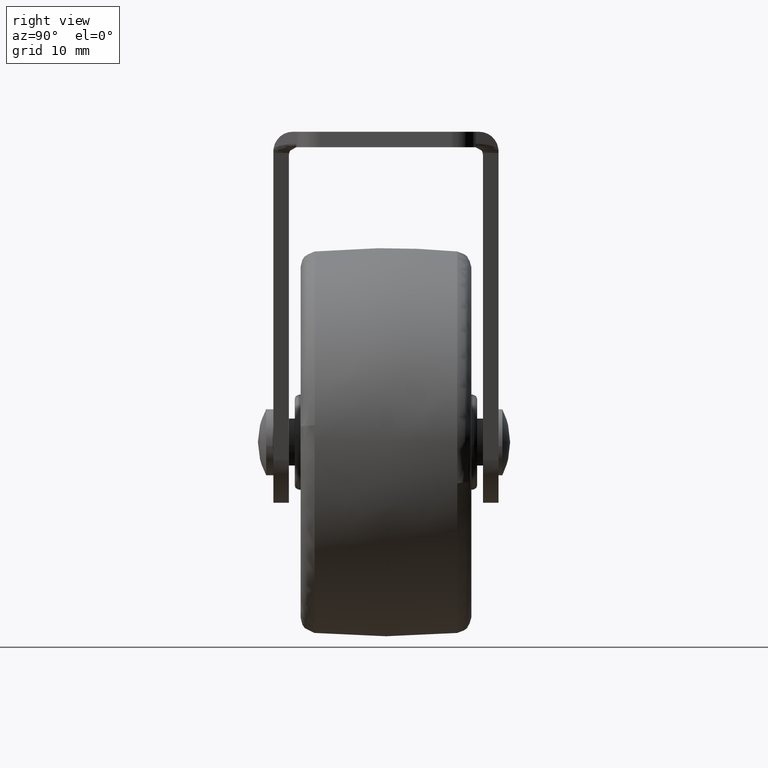
[diagram: clean part render]
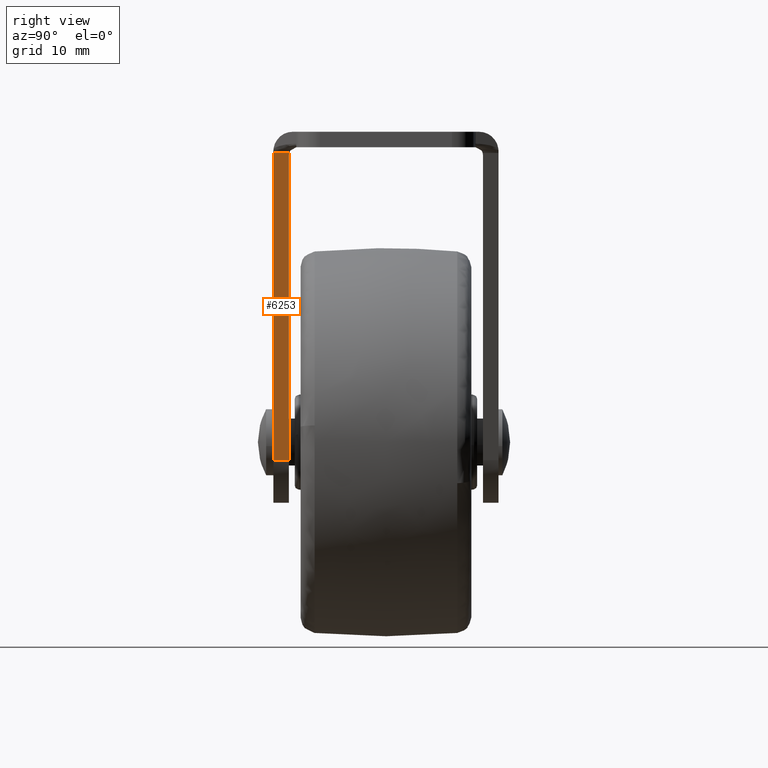
[diagram: same view with one face highlighted and labeled with its STEP entity id]
A machine part, right view. The second image highlights one B-rep face of the part: STEP entity #6253.
In plain terms, the highlighted face is a freeform B-spline surface patch.
Its self-contained STEP definition (entity closure, byte-faithful):
#5768=CARTESIAN_POINT('',(18.202673882767751,-12.463622182917620,-2.732731804007515));
#5769=VERTEX_POINT('',#5768);
#5794=CARTESIAN_POINT('',(18.202673882767751,-14.500000000000000,-2.732731804007570));
#5795=VERTEX_POINT('',#5794);
#5809=CARTESIAN_POINT('',(18.202673882767751,-12.463622182917620,-2.732731804007515));
#5810=CARTESIAN_POINT('',(18.202673882767751,-14.500000000000000,-2.732731804007570));
#5811=QUASI_UNIFORM_CURVE('',1,(#5809,#5810),.UNSPECIFIED.,.F.,.U.);
#5812=EDGE_CURVE('',#5769,#5795,#5811,.T.);
#6187=CARTESIAN_POINT('',(18.128544945249100,-12.500000000000000,-3.0));
#6188=VERTEX_POINT('',#6187);
#6189=CARTESIAN_POINT('',(18.128544945249100,-12.500000000000000,-3.0));
#6190=CARTESIAN_POINT('',(18.166296065685366,-12.500000000000002,-2.863890213546391));
#6191=CARTESIAN_POINT('',(18.202673882767741,-12.463622182917620,-2.732731804007512));
#6199=(BOUNDED_CURVE()B_SPLINE_CURVE(2,(#6189,#6190,#6191),.UNSPECIFIED.,.F.,.U.)CURVE()GEOMETRIC_REPRESENTATION_ITEM()QUASI_UNIFORM_CURVE()RATIONAL_B_SPLINE_CURVE((1.0,0.990863810752445,1.0))REPRESENTATION_ITEM(''));
#6200=EDGE_CURVE('',#6188,#5769,#6199,.T.);
#6225=CARTESIAN_POINT('',(6.678940730081922,-14.601717068016370,-44.280978331116323));
#6226=CARTESIAN_POINT('',(18.750900711468759,-14.601717068016370,-0.756127249750252));
#6227=CARTESIAN_POINT('',(6.678940730081922,-12.361905060281339,-44.280978331116323));
#6228=CARTESIAN_POINT('',(18.750900711468759,-12.361905060281339,-0.756127249750252));
#6229=B_SPLINE_SURFACE_WITH_KNOTS('',1,1,((#6225,#6227),(#6226,#6228)),.UNSPECIFIED.,.F.,.F.,.U.,(2,2),(2,2),(0.0,45.167962976509124),(0.0,2.239812007735031),.UNSPECIFIED.);
#6230=ORIENTED_EDGE('',*,*,#6200,.T.);
#6231=ORIENTED_EDGE('',*,*,#5812,.T.);
#6232=CARTESIAN_POINT('',(7.227166871882170,-14.500000000000000,-42.304376253445547));
#6233=VERTEX_POINT('',#6232);
#6234=CARTESIAN_POINT('',(18.202673882767751,-14.500000000000000,-2.732731804007570));
#6235=CARTESIAN_POINT('',(7.227166871882170,-14.500000000000000,-42.304376253445547));
#6236=QUASI_UNIFORM_CURVE('',1,(#6234,#6235),.UNSPECIFIED.,.F.,.U.);
#6237=EDGE_CURVE('',#5795,#6233,#6236,.T.);
#6238=ORIENTED_EDGE('',*,*,#6237,.T.);
#6239=CARTESIAN_POINT('',(7.227166871882170,-12.500000000000000,-42.304376253445547));
#6240=VERTEX_POINT('',#6239);
#6241=CARTESIAN_POINT('',(7.227166871882170,-14.500000000000000,-42.304376253445547));
#6242=CARTESIAN_POINT('',(7.227166871882170,-12.500000000000000,-42.304376253445547));
#6243=QUASI_UNIFORM_CURVE('',1,(#6241,#6242),.UNSPECIFIED.,.F.,.U.);
#6244=EDGE_CURVE('',#6233,#6240,#6243,.T.);
#6245=ORIENTED_EDGE('',*,*,#6244,.T.);
#6246=CARTESIAN_POINT('',(7.227166871882170,-12.500000000000000,-42.304376253445547));
#6247=CARTESIAN_POINT('',(18.128544945249100,-12.500000000000000,-3.0));
#6248=QUASI_UNIFORM_CURVE('',1,(#6246,#6247),.UNSPECIFIED.,.F.,.U.);
#6249=EDGE_CURVE('',#6240,#6188,#6248,.T.);
#6250=ORIENTED_EDGE('',*,*,#6249,.T.);
#6251=EDGE_LOOP('',(#6230,#6231,#6238,#6245,#6250));
#6252=FACE_OUTER_BOUND('',#6251,.T.);
#6253=ADVANCED_FACE('',(#6252),#6229,.F.);